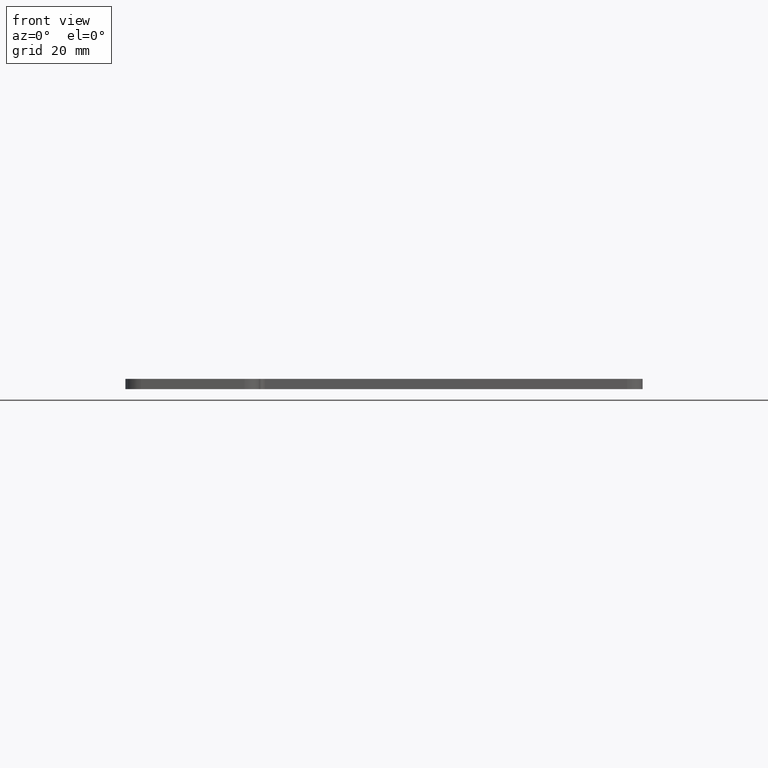
[diagram: clean part render]
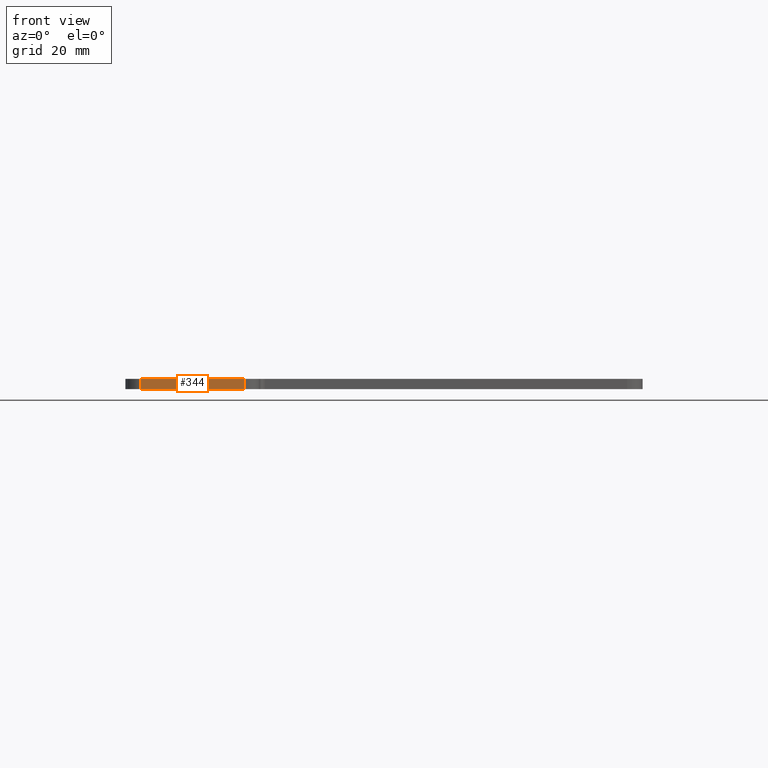
[diagram: same view with one face highlighted and labeled with its STEP entity id]
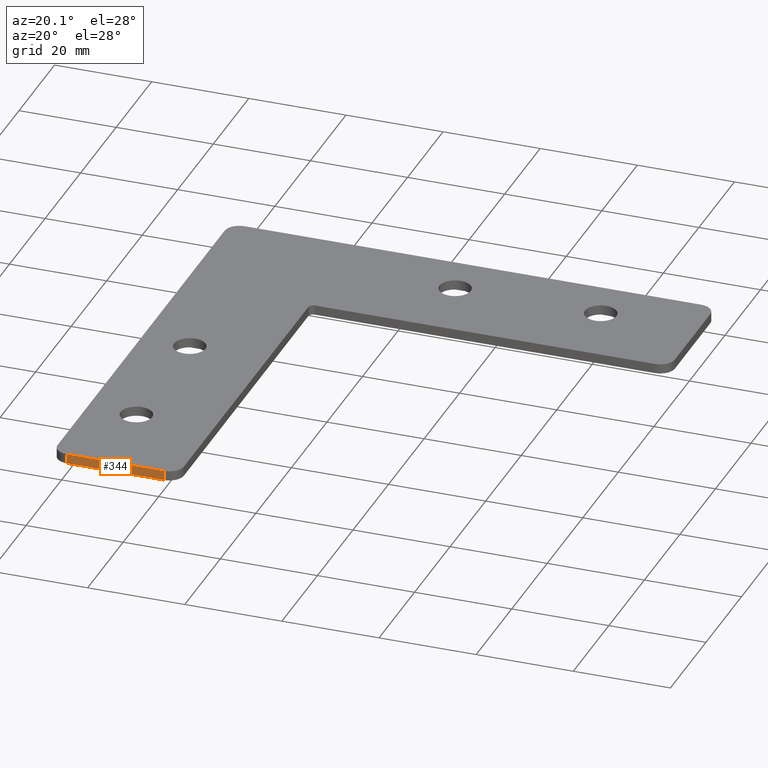
[diagram: same view with one face highlighted and labeled with its STEP entity id]
A machine part, front view. The second image highlights one B-rep face of the part: STEP entity #344.
A second angle (auxiliary view) of the same face is appended — the face is thin or edge-on in the first view.
In plain terms, the highlighted planar face has unit normal (0, -1, 0).
Its self-contained STEP definition (entity closure, byte-faithful):
#24=PLANE('',#397);
#38=FACE_OUTER_BOUND('',#56,.T.);
#56=EDGE_LOOP('',(#259,#260,#261,#262));
#84=LINE('',#567,#112);
#86=LINE('',#573,#114);
#87=LINE('',#575,#115);
#88=LINE('',#576,#116);
#112=VECTOR('',#463,10.);
#114=VECTOR('',#469,10.);
#115=VECTOR('',#470,10.);
#116=VECTOR('',#471,10.);
#166=VERTEX_POINT('',#564);
#167=VERTEX_POINT('',#566);
#169=VERTEX_POINT('',#572);
#170=VERTEX_POINT('',#574);
#203=EDGE_CURVE('',#166,#167,#84,.T.);
#206=EDGE_CURVE('',#169,#166,#86,.T.);
#207=EDGE_CURVE('',#170,#169,#87,.T.);
#208=EDGE_CURVE('',#167,#170,#88,.T.);
#259=ORIENTED_EDGE('',*,*,#203,.F.);
#260=ORIENTED_EDGE('',*,*,#206,.F.);
#261=ORIENTED_EDGE('',*,*,#207,.F.);
#262=ORIENTED_EDGE('',*,*,#208,.F.);
#344=ADVANCED_FACE('',(#38),#24,.T.);
#397=AXIS2_PLACEMENT_3D('',#571,#467,#468);
#463=DIRECTION('',(0.,0.,1.));
#467=DIRECTION('center_axis',(0.,-1.,0.));
#468=DIRECTION('ref_axis',(1.,0.,0.));
#469=DIRECTION('',(-1.,0.,0.));
#470=DIRECTION('',(0.,0.,-1.));
#471=DIRECTION('',(1.,0.,0.));
#564=CARTESIAN_POINT('',(-60.,-37.,-1.));
#566=CARTESIAN_POINT('',(-60.,-37.,1.));
#567=CARTESIAN_POINT('',(-60.,-37.,0.));
#571=CARTESIAN_POINT('Origin',(-63.,-37.,0.));
#572=CARTESIAN_POINT('',(-40.,-37.,-1.));
#573=CARTESIAN_POINT('',(-37.,-37.,-1.));
#574=CARTESIAN_POINT('',(-40.,-37.,1.));
#575=CARTESIAN_POINT('',(-40.,-37.,0.));
#576=CARTESIAN_POINT('',(-37.,-37.,1.));